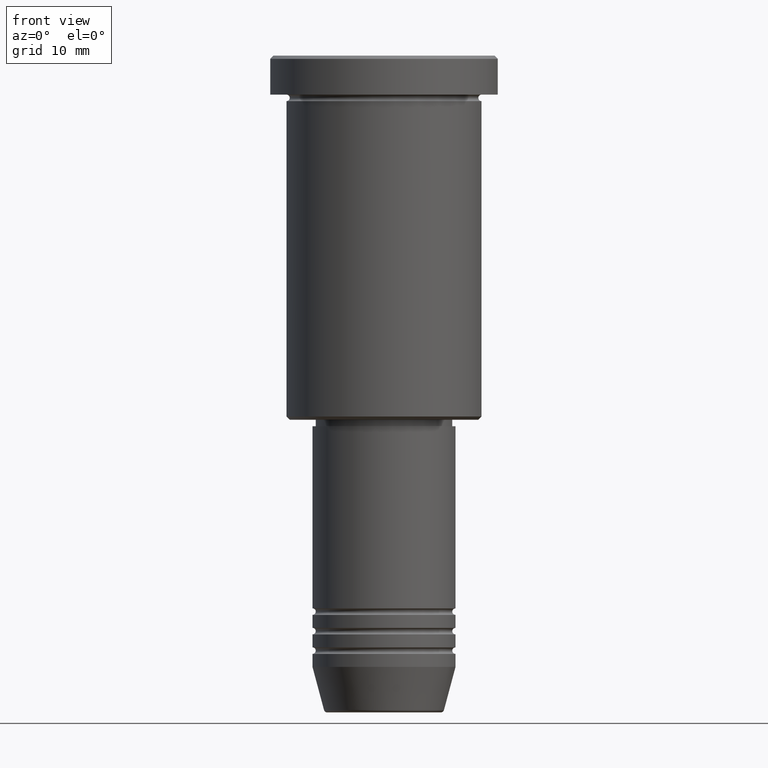
[diagram: clean part render]
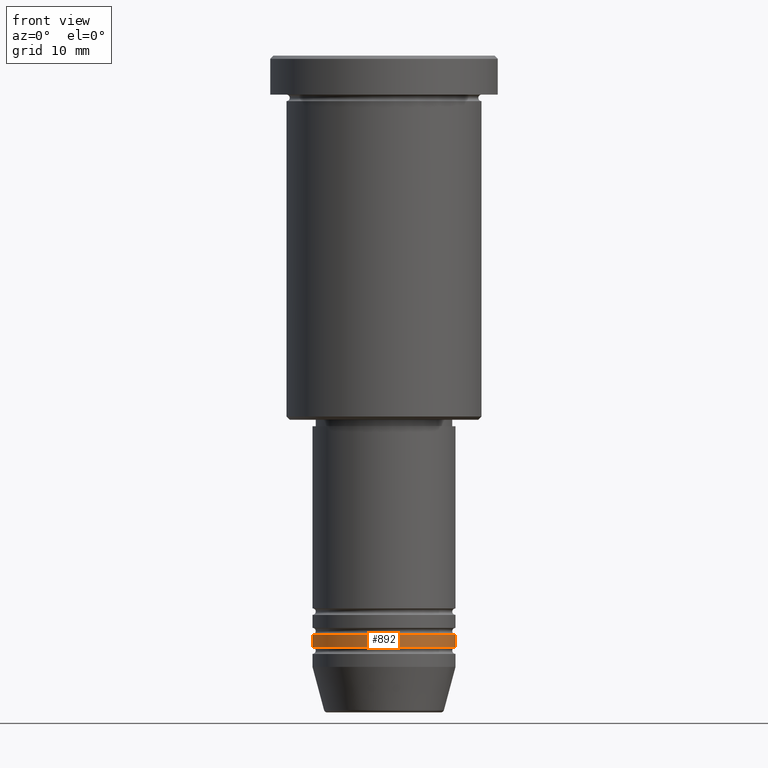
[diagram: same view with one face highlighted and labeled with its STEP entity id]
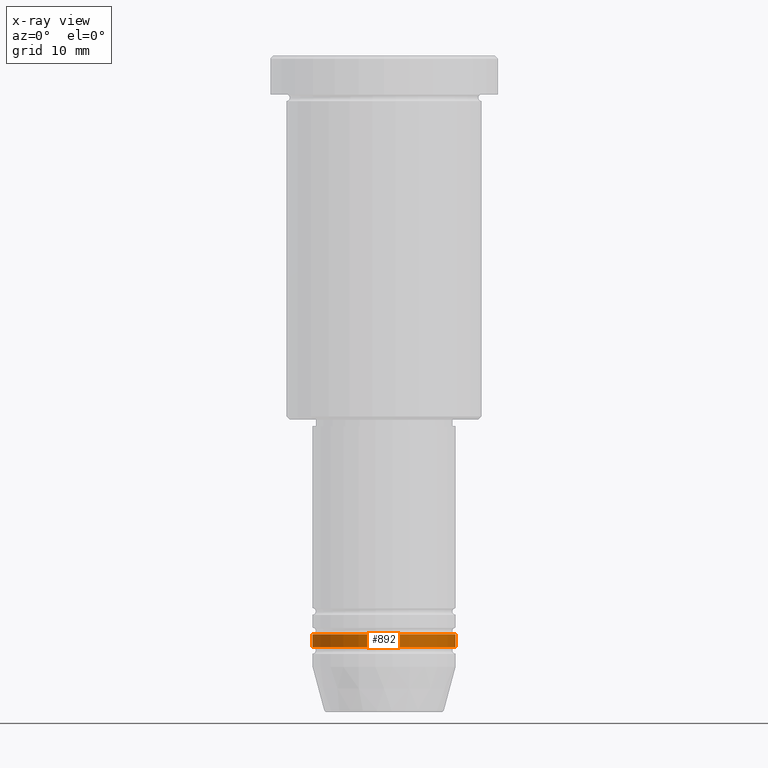
[diagram: x-ray of the same camera — body ghosted, the highlighted face saturated]
A machine part, front view. The second image highlights one B-rep face of the part: STEP entity #892.
The next image is the same camera in x-ray: the body ghosted, the highlighted face saturated — about 0% of this face is hidden behind the body in this view.
In plain terms, the highlighted cylindrical surface (partial cylindrical patch) has radius 11 mm, axis along (-0, -0, 1).
Its self-contained STEP definition (entity closure, byte-faithful):
#43 = LINE ( 'NONE', #797, #122 ) ;
#75 = ORIENTED_EDGE ( 'NONE', *, *, #657, .T. ) ;
#94 = ORIENTED_EDGE ( 'NONE', *, *, #831, .F. ) ;
#97 = CARTESIAN_POINT ( 'NONE',  ( 0.000000000000000000, 0.000000000000000000, -88.99999999999998579 ) ) ;
#122 = VECTOR ( 'NONE', #497, 1000.000000000000000 ) ;
#140 = LINE ( 'NONE', #875, #814 ) ;
#141 = CIRCLE ( 'NONE', #1115, 11.00000000000000000 ) ;
#148 = CARTESIAN_POINT ( 'NONE',  ( 11.00000000000000000, 0.000000000000000000, -90.99999999999998579 ) ) ;
#167 = DIRECTION ( 'NONE',  ( -0.000000000000000000, -0.000000000000000000, 1.000000000000000000 ) ) ;
#178 = DIRECTION ( 'NONE',  ( 1.000000000000000000, 0.000000000000000000, 0.000000000000000000 ) ) ;
#266 = CARTESIAN_POINT ( 'NONE',  ( 11.00000000000000000, 0.000000000000000000, -88.99999999999998579 ) ) ;
#334 = CARTESIAN_POINT ( 'NONE',  ( -11.00000000000000000, 1.347111479062088405E-15, -88.99999999999998579 ) ) ;
#359 = ORIENTED_EDGE ( 'NONE', *, *, #856, .T. ) ;
#385 = VERTEX_POINT ( 'NONE', #266 ) ;
#497 = DIRECTION ( 'NONE',  ( -0.000000000000000000, -0.000000000000000000, 1.000000000000000000 ) ) ;
#619 = CYLINDRICAL_SURFACE ( 'NONE', #775, 11.00000000000000000 ) ;
#626 = VERTEX_POINT ( 'NONE', #148 ) ;
#631 = VERTEX_POINT ( 'NONE', #1144 ) ;
#637 = FACE_OUTER_BOUND ( 'NONE', #1053, .T. ) ;
#657 = EDGE_CURVE ( 'NONE', #626, #385, #140, .T. ) ;
#669 = ORIENTED_EDGE ( 'NONE', *, *, #730, .F. ) ;
#695 = VERTEX_POINT ( 'NONE', #334 ) ;
#718 = CARTESIAN_POINT ( 'NONE',  ( 0.000000000000000000, 0.000000000000000000, -90.99999999999998579 ) ) ;
#730 = EDGE_CURVE ( 'NONE', #631, #695, #43, .T. ) ;
#775 = AXIS2_PLACEMENT_3D ( 'NONE', #1160, #1000, #178 ) ;
#797 = CARTESIAN_POINT ( 'NONE',  ( -11.00000000000000000, 1.347111479062088405E-15, 0.000000000000000000 ) ) ;
#807 = DIRECTION ( 'NONE',  ( 1.000000000000000000, 0.000000000000000000, 0.000000000000000000 ) ) ;
#814 = VECTOR ( 'NONE', #1051, 1000.000000000000000 ) ;
#817 = CIRCLE ( 'NONE', #1150, 11.00000000000000000 ) ;
#831 = EDGE_CURVE ( 'NONE', #695, #385, #141, .T. ) ;
#856 = EDGE_CURVE ( 'NONE', #631, #626, #817, .T. ) ;
#875 = CARTESIAN_POINT ( 'NONE',  ( 11.00000000000000000, 0.000000000000000000, 0.000000000000000000 ) ) ;
#892 = ADVANCED_FACE ( 'NONE', ( #637 ), #619, .T. ) ;
#1000 = DIRECTION ( 'NONE',  ( -0.000000000000000000, -0.000000000000000000, 1.000000000000000000 ) ) ;
#1051 = DIRECTION ( 'NONE',  ( -0.000000000000000000, -0.000000000000000000, 1.000000000000000000 ) ) ;
#1053 = EDGE_LOOP ( 'NONE', ( #669, #359, #75, #94 ) ) ;
#1082 = DIRECTION ( 'NONE',  ( 1.000000000000000000, 0.000000000000000000, 0.000000000000000000 ) ) ;
#1088 = DIRECTION ( 'NONE',  ( -0.000000000000000000, -0.000000000000000000, 1.000000000000000000 ) ) ;
#1115 = AXIS2_PLACEMENT_3D ( 'NONE', #97, #167, #807 ) ;
#1144 = CARTESIAN_POINT ( 'NONE',  ( -11.00000000000000000, 1.347111479062088405E-15, -90.99999999999998579 ) ) ;
#1150 = AXIS2_PLACEMENT_3D ( 'NONE', #718, #1088, #1082 ) ;
#1160 = CARTESIAN_POINT ( 'NONE',  ( 0.000000000000000000, 0.000000000000000000, 0.000000000000000000 ) ) ;